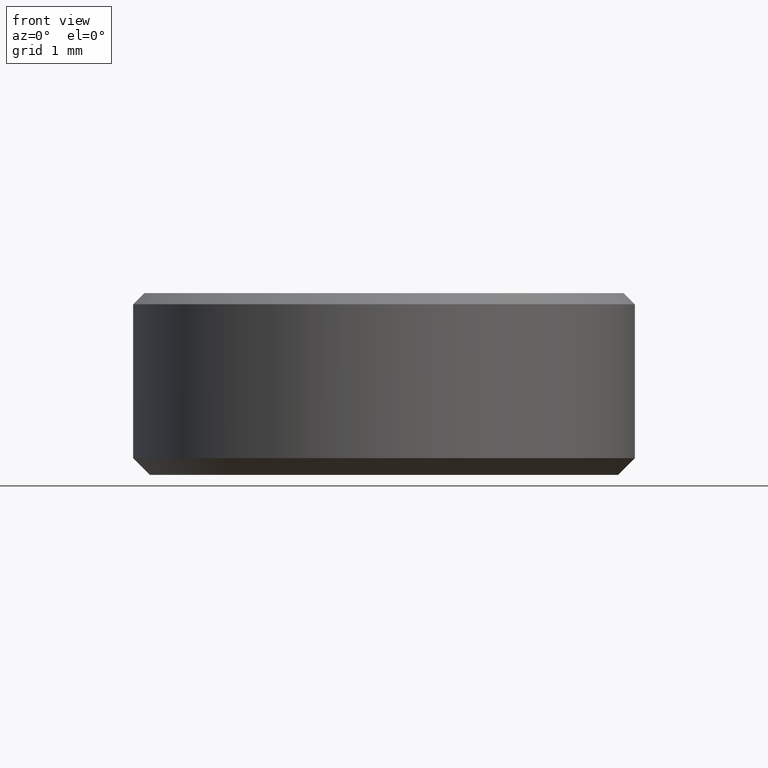
[diagram: clean part render]
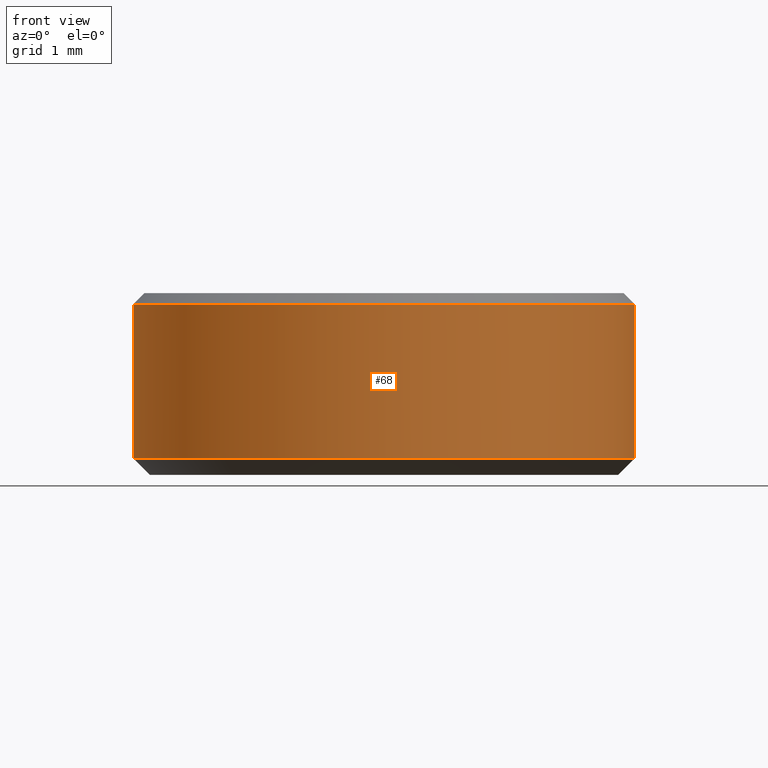
[diagram: same view with one face highlighted and labeled with its STEP entity id]
A machine part, front view. The second image highlights one B-rep face of the part: STEP entity #68.
In plain terms, the highlighted cylindrical surface (partial cylindrical patch) has radius 3 mm, axis along (-0, -0, 1).
Its self-contained STEP definition (entity closure, byte-faithful):
#8 = VECTOR ( 'NONE', #132, 1000.000000000000000 ) ;
#13 = ORIENTED_EDGE ( 'NONE', *, *, #107, .F. ) ;
#17 = DIRECTION ( 'NONE',  ( -1.000000000000000000, 0.000000000000000000, 0.000000000000000000 ) ) ;
#22 = LINE ( 'NONE', #142, #118 ) ;
#36 = DIRECTION ( 'NONE',  ( -0.000000000000000000, -0.000000000000000000, 1.000000000000000000 ) ) ;
#41 = CARTESIAN_POINT ( 'NONE',  ( 0.000000000000000000, 0.000000000000000000, 2.039999999999998259 ) ) ;
#43 = CARTESIAN_POINT ( 'NONE',  ( 3.000000000000000000, 0.000000000000000000, 0.2000000000000020373 ) ) ;
#55 = FACE_OUTER_BOUND ( 'NONE', #113, .T. ) ;
#56 = DIRECTION ( 'NONE',  ( 1.000000000000000000, 0.000000000000000000, 0.000000000000000000 ) ) ;
#65 = VERTEX_POINT ( 'NONE', #196 ) ;
#68 = ADVANCED_FACE ( 'NONE', ( #55 ), #76, .T. ) ;
#76 = CYLINDRICAL_SURFACE ( 'NONE', #117, 3.000000000000000000 ) ;
#83 = CARTESIAN_POINT ( 'NONE',  ( 3.000000000000000000, 0.000000000000000000, 1.500000000000000000 ) ) ;
#86 = CIRCLE ( 'NONE', #251, 3.000000000000000000 ) ;
#103 = ORIENTED_EDGE ( 'NONE', *, *, #180, .T. ) ;
#105 = AXIS2_PLACEMENT_3D ( 'NONE', #41, #181, #17 ) ;
#107 = EDGE_CURVE ( 'NONE', #130, #178, #22, .T. ) ;
#108 = EDGE_CURVE ( 'NONE', #65, #178, #182, .T. ) ;
#113 = EDGE_LOOP ( 'NONE', ( #13, #103, #214, #147 ) ) ;
#114 = DIRECTION ( 'NONE',  ( 1.000000000000000000, 0.000000000000000000, 0.000000000000000000 ) ) ;
#117 = AXIS2_PLACEMENT_3D ( 'NONE', #154, #233, #56 ) ;
#118 = VECTOR ( 'NONE', #218, 1000.000000000000000 ) ;
#130 = VERTEX_POINT ( 'NONE', #138 ) ;
#132 = DIRECTION ( 'NONE',  ( -0.000000000000000000, -0.000000000000000000, 1.000000000000000000 ) ) ;
#138 = CARTESIAN_POINT ( 'NONE',  ( -3.000000000000000000, 3.673940397442059868E-16, 0.2000000000000020373 ) ) ;
#142 = CARTESIAN_POINT ( 'NONE',  ( -3.000000000000000000, 3.673940397442059868E-16, 1.500000000000000000 ) ) ;
#147 = ORIENTED_EDGE ( 'NONE', *, *, #108, .T. ) ;
#154 = CARTESIAN_POINT ( 'NONE',  ( 0.000000000000000000, 0.000000000000000000, 1.500000000000000000 ) ) ;
#158 = VERTEX_POINT ( 'NONE', #43 ) ;
#163 = CARTESIAN_POINT ( 'NONE',  ( 0.000000000000000000, 0.000000000000000000, 0.2000000000000020373 ) ) ;
#166 = LINE ( 'NONE', #83, #8 ) ;
#178 = VERTEX_POINT ( 'NONE', #185 ) ;
#180 = EDGE_CURVE ( 'NONE', #130, #158, #86, .T. ) ;
#181 = DIRECTION ( 'NONE',  ( 0.000000000000000000, 0.000000000000000000, -1.000000000000000000 ) ) ;
#182 = CIRCLE ( 'NONE', #105, 3.000000000000000000 ) ;
#185 = CARTESIAN_POINT ( 'NONE',  ( -3.000000000000000000, 3.673940397442059868E-16, 2.039999999999998259 ) ) ;
#196 = CARTESIAN_POINT ( 'NONE',  ( 3.000000000000000000, 0.000000000000000000, 2.039999999999998259 ) ) ;
#214 = ORIENTED_EDGE ( 'NONE', *, *, #230, .T. ) ;
#218 = DIRECTION ( 'NONE',  ( -0.000000000000000000, -0.000000000000000000, 1.000000000000000000 ) ) ;
#230 = EDGE_CURVE ( 'NONE', #158, #65, #166, .T. ) ;
#233 = DIRECTION ( 'NONE',  ( -0.000000000000000000, -0.000000000000000000, 1.000000000000000000 ) ) ;
#251 = AXIS2_PLACEMENT_3D ( 'NONE', #163, #36, #114 ) ;